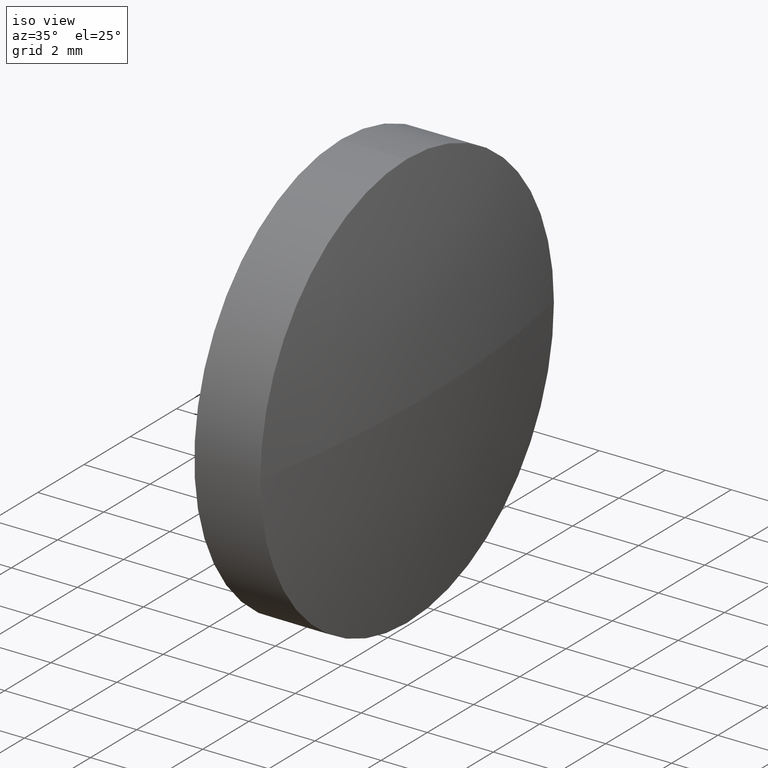
[diagram: clean part render]
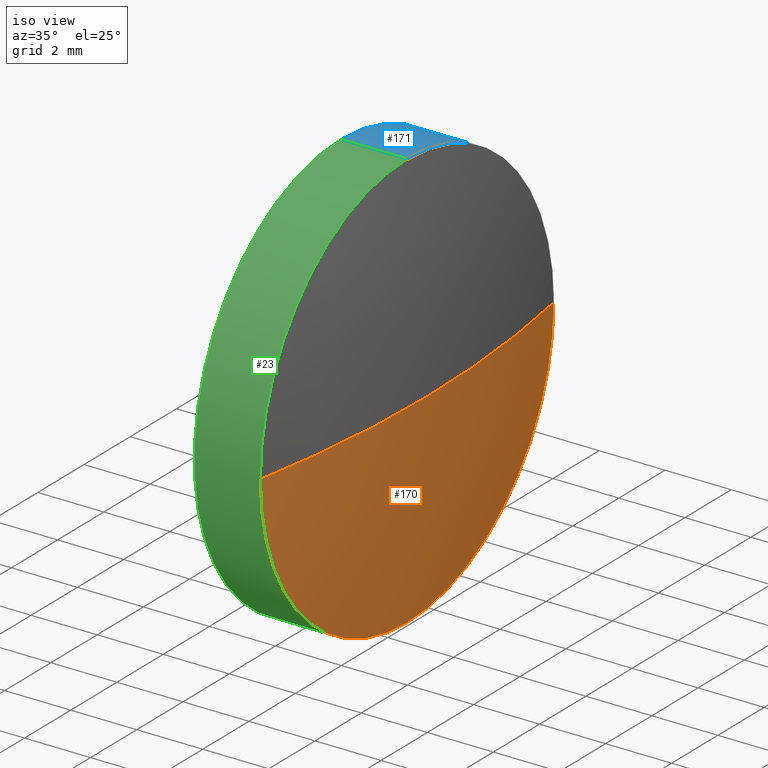
[diagram: same view with three faces highlighted in distinct colors, each labeled with its STEP entity id]
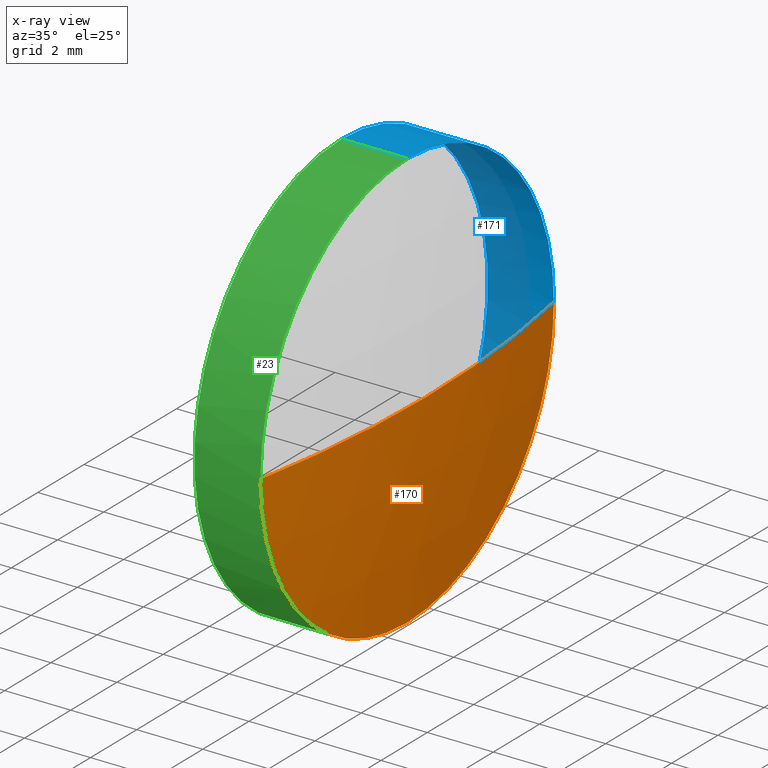
[diagram: x-ray of the same camera — body ghosted, the three highlighted faces saturated]
A machine part, iso view with three faces highlighted in distinct colors.
The next image is the same camera in x-ray (body ghosted, the three faces saturated) — at least one of them is partly hidden behind the body in this view.
Their STEP definitions:

[orange] entity #170 — the highlighted spherical surface has radius 33.9021 mm.
#3 = VERTEX_POINT ( 'NONE', #39 ) ;
#12 = VERTEX_POINT ( 'NONE', #178 ) ;
#26 = AXIS2_PLACEMENT_3D ( 'NONE', #46, #47, #166 ) ;
#30 = DIRECTION ( 'NONE',  ( 0.0000000000000000000, 0.0000000000000000000, 1.000000000000000000 ) ) ;
#31 = AXIS2_PLACEMENT_3D ( 'NONE', #177, #186, #106 ) ;
#35 = VERTEX_POINT ( 'NONE', #181 ) ;
#38 = ORIENTED_EDGE ( 'NONE', *, *, #101, .F. ) ;
#39 = CARTESIAN_POINT ( 'NONE',  ( 370.2318744499828000, 178.5090512951935900, -6.349999999999994300 ) ) ;
#44 = CARTESIAN_POINT ( 'NONE',  ( 336.9297911166494800, 178.5090512951935900, 0.0000000000000000000 ) ) ;
#46 = CARTESIAN_POINT ( 'NONE',  ( 336.9297911166494800, 178.5090512951935900, 0.0000000000000000000 ) ) ;
#47 = DIRECTION ( 'NONE',  ( 0.0000000000000000000, 1.224646799147353200E-016, -1.000000000000000000 ) ) ;
#49 = CIRCLE ( 'NONE', #127, 6.349999999999994300 ) ;
#54 = CIRCLE ( 'NONE', #26, 33.90208333333328000 ) ;
#57 = CARTESIAN_POINT ( 'NONE',  ( 370.2318744499828000, 178.5090512951935900, 0.0000000000000000000 ) ) ;
#58 = CARTESIAN_POINT ( 'NONE',  ( 370.2318744499828000, 184.8590512951935500, 0.0000000000000000000 ) ) ;
#61 = DIRECTION ( 'NONE',  ( 0.0000000000000000000, 0.0000000000000000000, 1.000000000000000000 ) ) ;
#64 = DIRECTION ( 'NONE',  ( -0.0000000000000000000, 0.0000000000000000000, 1.000000000000000000 ) ) ;
#77 = DIRECTION ( 'NONE',  ( -1.000000000000000000, -0.0000000000000000000, -0.0000000000000000000 ) ) ;
#83 = EDGE_CURVE ( 'NONE', #12, #35, #54, .T. ) ;
#84 = ORIENTED_EDGE ( 'NONE', *, *, #83, .T. ) ;
#88 = ORIENTED_EDGE ( 'NONE', *, *, #110, .F. ) ;
#90 = ORIENTED_EDGE ( 'NONE', *, *, #134, .F. ) ;
#101 = EDGE_CURVE ( 'NONE', #3, #35, #119, .T. ) ;
#102 = FACE_OUTER_BOUND ( 'NONE', #126, .T. ) ;
#106 = DIRECTION ( 'NONE',  ( 0.0000000000000000000, 1.000000000000000000, 0.0000000000000000000 ) ) ;
#110 = EDGE_CURVE ( 'NONE', #12, #156, #169, .T. ) ;
#119 = CIRCLE ( 'NONE', #174, 6.349999999999994300 ) ;
#124 = DIRECTION ( 'NONE',  ( -1.000000000000000000, -0.0000000000000000000, -0.0000000000000000000 ) ) ;
#126 = EDGE_LOOP ( 'NONE', ( #88, #84, #38, #90 ) ) ;
#127 = AXIS2_PLACEMENT_3D ( 'NONE', #57, #124, #30 ) ;
#129 = SPHERICAL_SURFACE ( 'NONE', #31, 33.90208333333328000 ) ;
#130 = AXIS2_PLACEMENT_3D ( 'NONE', #44, #64, #164 ) ;
#134 = EDGE_CURVE ( 'NONE', #156, #3, #49, .T. ) ;
#156 = VERTEX_POINT ( 'NONE', #58 ) ;
#162 = CARTESIAN_POINT ( 'NONE',  ( 370.2318744499828000, 178.5090512951935900, 0.0000000000000000000 ) ) ;
#164 = DIRECTION ( 'NONE',  ( 1.000000000000000000, 0.0000000000000000000, 0.0000000000000000000 ) ) ;
#166 = DIRECTION ( 'NONE',  ( 0.0000000000000000000, 1.000000000000000000, 1.224646799147353200E-016 ) ) ;
#169 = CIRCLE ( 'NONE', #130, 33.90208333333328000 ) ;
#170 = ADVANCED_FACE ( 'NONE', ( #102 ), #129, .T. ) ;
#174 = AXIS2_PLACEMENT_3D ( 'NONE', #162, #77, #61 ) ;
#177 = CARTESIAN_POINT ( 'NONE',  ( 336.9297911166494800, 178.5090512951935900, 0.0000000000000000000 ) ) ;
#178 = CARTESIAN_POINT ( 'NONE',  ( 370.8318744499827600, 178.5090512951935900, 0.0000000000000000000 ) ) ;
#181 = CARTESIAN_POINT ( 'NONE',  ( 370.2318744499828000, 172.1590512951936200, -7.776507174585653700E-016 ) ) ;
#186 = DIRECTION ( 'NONE',  ( -0.0000000000000000000, 0.0000000000000000000, -1.000000000000000000 ) ) ;

[blue] entity #171 — the highlighted cylindrical surface (partial cylindrical patch) has radius 6.35 mm, axis along (-1, -0, -0).
#2 = DIRECTION ( 'NONE',  ( -1.000000000000000000, -0.0000000000000000000, -0.0000000000000000000 ) ) ;
#3 = VERTEX_POINT ( 'NONE', #39 ) ;
#4 = DIRECTION ( 'NONE',  ( 0.0000000000000000000, 0.0000000000000000000, 1.000000000000000000 ) ) ;
#5 = ORIENTED_EDGE ( 'NONE', *, *, #134, .T. ) ;
#11 = AXIS2_PLACEMENT_3D ( 'NONE', #63, #139, #4 ) ;
#14 = DIRECTION ( 'NONE',  ( -1.000000000000000000, -0.0000000000000000000, -0.0000000000000000000 ) ) ;
#15 = VECTOR ( 'NONE', #160, 1000.000000000000000 ) ;
#17 = CARTESIAN_POINT ( 'NONE',  ( 365.9713433041283100, 178.5090512951935900, 6.349999999999994300 ) ) ;
#30 = DIRECTION ( 'NONE',  ( 0.0000000000000000000, 0.0000000000000000000, 1.000000000000000000 ) ) ;
#39 = CARTESIAN_POINT ( 'NONE',  ( 370.2318744499828000, 178.5090512951935900, -6.349999999999994300 ) ) ;
#49 = CIRCLE ( 'NONE', #127, 6.349999999999994300 ) ;
#51 = FACE_OUTER_BOUND ( 'NONE', #142, .T. ) ;
#57 = CARTESIAN_POINT ( 'NONE',  ( 370.2318744499828000, 178.5090512951935900, 0.0000000000000000000 ) ) ;
#58 = CARTESIAN_POINT ( 'NONE',  ( 370.2318744499828000, 184.8590512951935500, 0.0000000000000000000 ) ) ;
#62 = EDGE_CURVE ( 'NONE', #112, #156, #148, .T. ) ;
#63 = CARTESIAN_POINT ( 'NONE',  ( 370.2318744499828000, 178.5090512951935900, 0.0000000000000000000 ) ) ;
#65 = VERTEX_POINT ( 'NONE', #121 ) ;
#71 = EDGE_CURVE ( 'NONE', #65, #172, #132, .T. ) ;
#72 = AXIS2_PLACEMENT_3D ( 'NONE', #111, #14, #117 ) ;
#85 = AXIS2_PLACEMENT_3D ( 'NONE', #153, #97, #154 ) ;
#87 = ORIENTED_EDGE ( 'NONE', *, *, #62, .T. ) ;
#91 = CARTESIAN_POINT ( 'NONE',  ( 365.9713433041283100, 178.5090512951935900, -6.349999999999994300 ) ) ;
#97 = DIRECTION ( 'NONE',  ( -1.000000000000000000, -0.0000000000000000000, -0.0000000000000000000 ) ) ;
#111 = CARTESIAN_POINT ( 'NONE',  ( 365.9713433041283100, 178.5090512951935900, 0.0000000000000000000 ) ) ;
#112 = VERTEX_POINT ( 'NONE', #120 ) ;
#117 = DIRECTION ( 'NONE',  ( 0.0000000000000000000, 0.0000000000000000000, 1.000000000000000000 ) ) ;
#120 = CARTESIAN_POINT ( 'NONE',  ( 370.2318744499828000, 178.5090512951935900, 6.349999999999994300 ) ) ;
#121 = CARTESIAN_POINT ( 'NONE',  ( 368.2318744499828000, 178.5090512951935900, 6.349999999999994300 ) ) ;
#122 = EDGE_CURVE ( 'NONE', #112, #65, #173, .T. ) ;
#124 = DIRECTION ( 'NONE',  ( -1.000000000000000000, -0.0000000000000000000, -0.0000000000000000000 ) ) ;
#127 = AXIS2_PLACEMENT_3D ( 'NONE', #57, #124, #30 ) ;
#128 = VECTOR ( 'NONE', #2, 1000.000000000000000 ) ;
#131 = ORIENTED_EDGE ( 'NONE', *, *, #149, .T. ) ;
#132 = CIRCLE ( 'NONE', #85, 6.349999999999994300 ) ;
#134 = EDGE_CURVE ( 'NONE', #156, #3, #49, .T. ) ;
#137 = CARTESIAN_POINT ( 'NONE',  ( 368.2318744499828000, 178.5090512951935900, -6.349999999999994300 ) ) ;
#139 = DIRECTION ( 'NONE',  ( -1.000000000000000000, -0.0000000000000000000, -0.0000000000000000000 ) ) ;
#141 = CYLINDRICAL_SURFACE ( 'NONE', #72, 6.349999999999994300 ) ;
#142 = EDGE_LOOP ( 'NONE', ( #5, #131, #147, #183, #87 ) ) ;
#147 = ORIENTED_EDGE ( 'NONE', *, *, #71, .F. ) ;
#148 = CIRCLE ( 'NONE', #11, 6.349999999999994300 ) ;
#149 = EDGE_CURVE ( 'NONE', #3, #172, #157, .T. ) ;
#153 = CARTESIAN_POINT ( 'NONE',  ( 368.2318744499828000, 178.5090512951935900, 0.0000000000000000000 ) ) ;
#154 = DIRECTION ( 'NONE',  ( 0.0000000000000000000, 0.0000000000000000000, 1.000000000000000000 ) ) ;
#156 = VERTEX_POINT ( 'NONE', #58 ) ;
#157 = LINE ( 'NONE', #91, #128 ) ;
#160 = DIRECTION ( 'NONE',  ( -1.000000000000000000, -0.0000000000000000000, -0.0000000000000000000 ) ) ;
#171 = ADVANCED_FACE ( 'NONE', ( #51 ), #141, .T. ) ;
#172 = VERTEX_POINT ( 'NONE', #137 ) ;
#173 = LINE ( 'NONE', #17, #15 ) ;
#183 = ORIENTED_EDGE ( 'NONE', *, *, #122, .F. ) ;

[green] entity #23 — the highlighted cylindrical surface (partial cylindrical patch) has radius 6.35 mm, axis along (-1, -0, -0).
#2 = DIRECTION ( 'NONE',  ( -1.000000000000000000, -0.0000000000000000000, -0.0000000000000000000 ) ) ;
#3 = VERTEX_POINT ( 'NONE', #39 ) ;
#15 = VECTOR ( 'NONE', #160, 1000.000000000000000 ) ;
#17 = CARTESIAN_POINT ( 'NONE',  ( 365.9713433041283100, 178.5090512951935900, 6.349999999999994300 ) ) ;
#22 = CYLINDRICAL_SURFACE ( 'NONE', #24, 6.349999999999994300 ) ;
#23 = ADVANCED_FACE ( 'NONE', ( #53 ), #22, .T. ) ;
#24 = AXIS2_PLACEMENT_3D ( 'NONE', #123, #78, #43 ) ;
#35 = VERTEX_POINT ( 'NONE', #181 ) ;
#39 = CARTESIAN_POINT ( 'NONE',  ( 370.2318744499828000, 178.5090512951935900, -6.349999999999994300 ) ) ;
#43 = DIRECTION ( 'NONE',  ( 0.0000000000000000000, 0.0000000000000000000, 1.000000000000000000 ) ) ;
#45 = CARTESIAN_POINT ( 'NONE',  ( 368.2318744499828000, 178.5090512951935900, 0.0000000000000000000 ) ) ;
#48 = ORIENTED_EDGE ( 'NONE', *, *, #101, .T. ) ;
#53 = FACE_OUTER_BOUND ( 'NONE', #116, .T. ) ;
#55 = AXIS2_PLACEMENT_3D ( 'NONE', #140, #92, #143 ) ;
#61 = DIRECTION ( 'NONE',  ( 0.0000000000000000000, 0.0000000000000000000, 1.000000000000000000 ) ) ;
#65 = VERTEX_POINT ( 'NONE', #121 ) ;
#76 = ORIENTED_EDGE ( 'NONE', *, *, #149, .F. ) ;
#77 = DIRECTION ( 'NONE',  ( -1.000000000000000000, -0.0000000000000000000, -0.0000000000000000000 ) ) ;
#78 = DIRECTION ( 'NONE',  ( -1.000000000000000000, -0.0000000000000000000, -0.0000000000000000000 ) ) ;
#81 = AXIS2_PLACEMENT_3D ( 'NONE', #45, #179, #109 ) ;
#86 = CIRCLE ( 'NONE', #81, 6.349999999999994300 ) ;
#91 = CARTESIAN_POINT ( 'NONE',  ( 365.9713433041283100, 178.5090512951935900, -6.349999999999994300 ) ) ;
#92 = DIRECTION ( 'NONE',  ( -1.000000000000000000, -0.0000000000000000000, -0.0000000000000000000 ) ) ;
#95 = EDGE_CURVE ( 'NONE', #35, #112, #136, .T. ) ;
#96 = ORIENTED_EDGE ( 'NONE', *, *, #95, .T. ) ;
#101 = EDGE_CURVE ( 'NONE', #3, #35, #119, .T. ) ;
#103 = EDGE_CURVE ( 'NONE', #172, #65, #86, .T. ) ;
#109 = DIRECTION ( 'NONE',  ( 0.0000000000000000000, 0.0000000000000000000, 1.000000000000000000 ) ) ;
#112 = VERTEX_POINT ( 'NONE', #120 ) ;
#116 = EDGE_LOOP ( 'NONE', ( #76, #48, #96, #167, #158 ) ) ;
#119 = CIRCLE ( 'NONE', #174, 6.349999999999994300 ) ;
#120 = CARTESIAN_POINT ( 'NONE',  ( 370.2318744499828000, 178.5090512951935900, 6.349999999999994300 ) ) ;
#121 = CARTESIAN_POINT ( 'NONE',  ( 368.2318744499828000, 178.5090512951935900, 6.349999999999994300 ) ) ;
#122 = EDGE_CURVE ( 'NONE', #112, #65, #173, .T. ) ;
#123 = CARTESIAN_POINT ( 'NONE',  ( 365.9713433041283100, 178.5090512951935900, 0.0000000000000000000 ) ) ;
#128 = VECTOR ( 'NONE', #2, 1000.000000000000000 ) ;
#136 = CIRCLE ( 'NONE', #55, 6.349999999999994300 ) ;
#137 = CARTESIAN_POINT ( 'NONE',  ( 368.2318744499828000, 178.5090512951935900, -6.349999999999994300 ) ) ;
#140 = CARTESIAN_POINT ( 'NONE',  ( 370.2318744499828000, 178.5090512951935900, 0.0000000000000000000 ) ) ;
#143 = DIRECTION ( 'NONE',  ( 0.0000000000000000000, 0.0000000000000000000, 1.000000000000000000 ) ) ;
#149 = EDGE_CURVE ( 'NONE', #3, #172, #157, .T. ) ;
#157 = LINE ( 'NONE', #91, #128 ) ;
#158 = ORIENTED_EDGE ( 'NONE', *, *, #103, .F. ) ;
#160 = DIRECTION ( 'NONE',  ( -1.000000000000000000, -0.0000000000000000000, -0.0000000000000000000 ) ) ;
#162 = CARTESIAN_POINT ( 'NONE',  ( 370.2318744499828000, 178.5090512951935900, 0.0000000000000000000 ) ) ;
#167 = ORIENTED_EDGE ( 'NONE', *, *, #122, .T. ) ;
#172 = VERTEX_POINT ( 'NONE', #137 ) ;
#173 = LINE ( 'NONE', #17, #15 ) ;
#174 = AXIS2_PLACEMENT_3D ( 'NONE', #162, #77, #61 ) ;
#179 = DIRECTION ( 'NONE',  ( -1.000000000000000000, -0.0000000000000000000, -0.0000000000000000000 ) ) ;
#181 = CARTESIAN_POINT ( 'NONE',  ( 370.2318744499828000, 172.1590512951936200, -7.776507174585653700E-016 ) ) ;